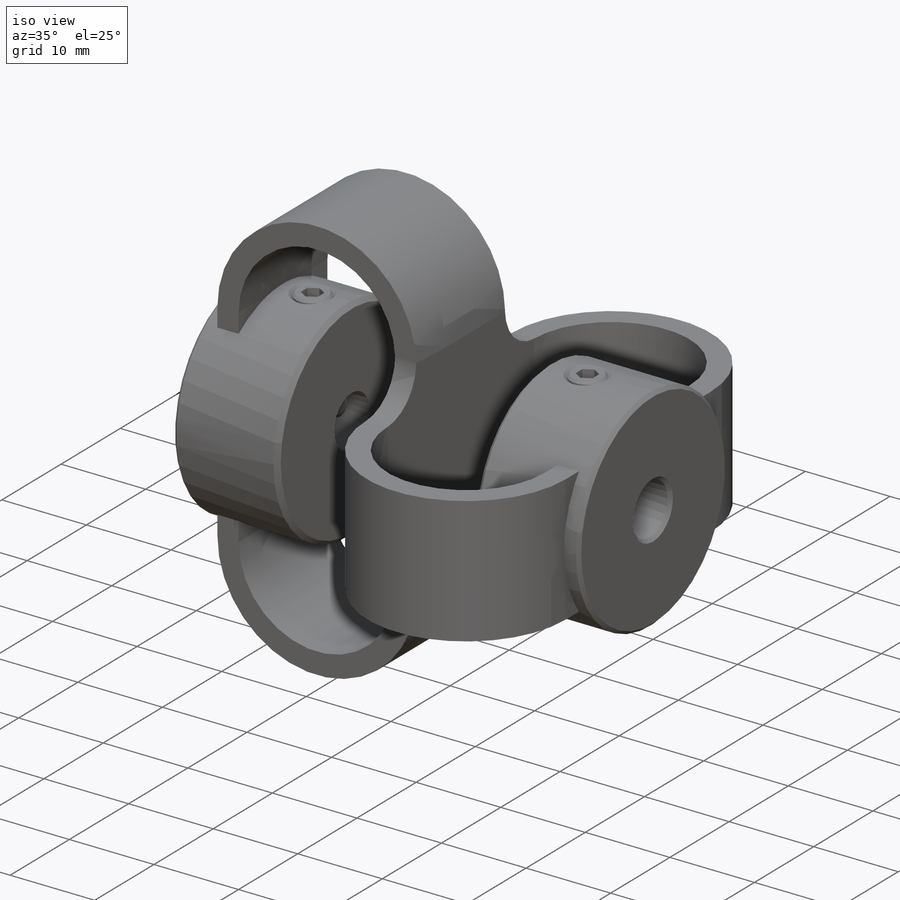
[diagram: iso view]
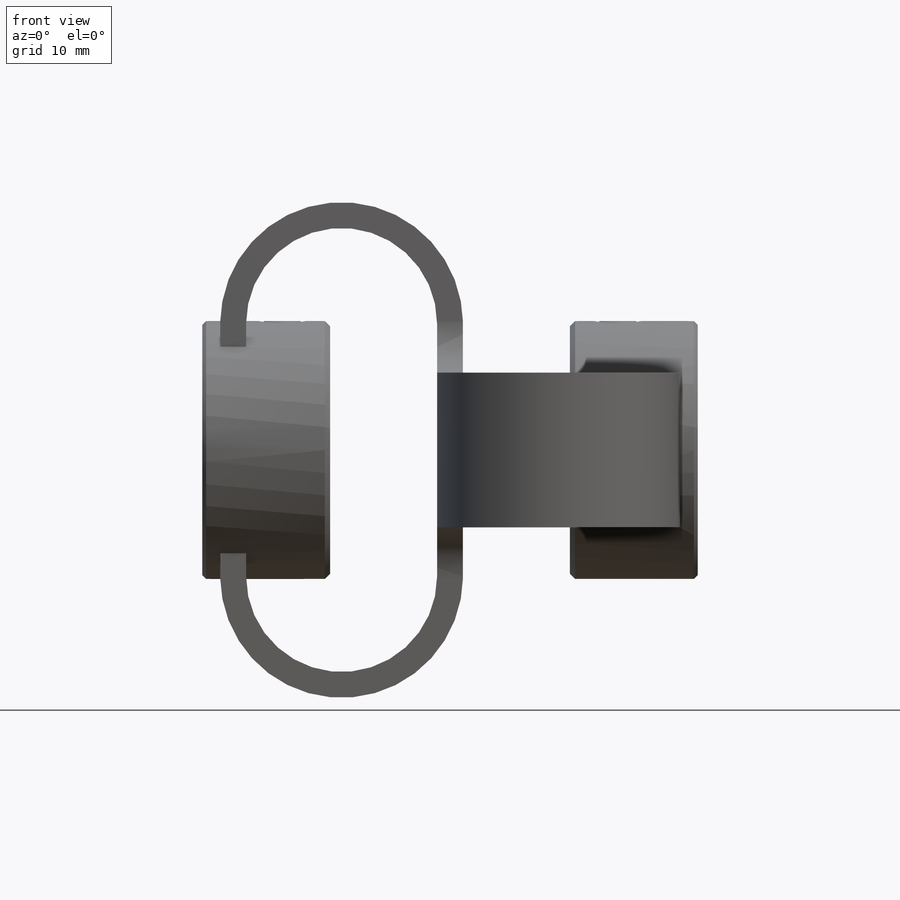
[diagram: front view]
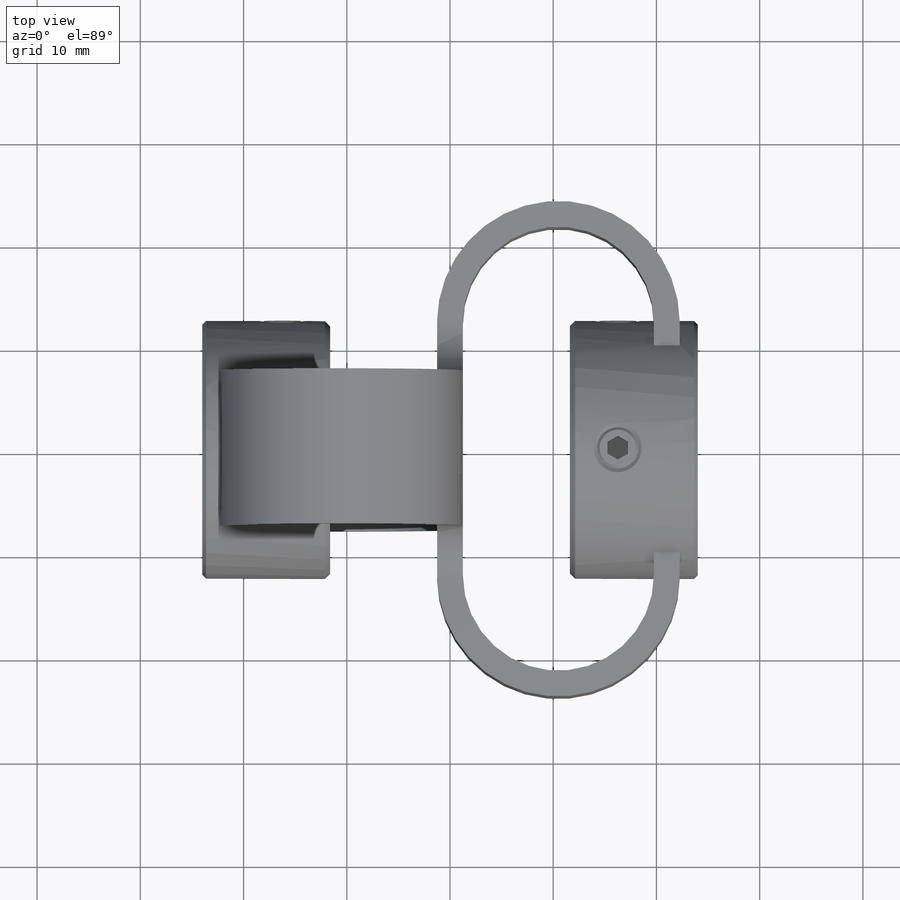
[diagram: top view]
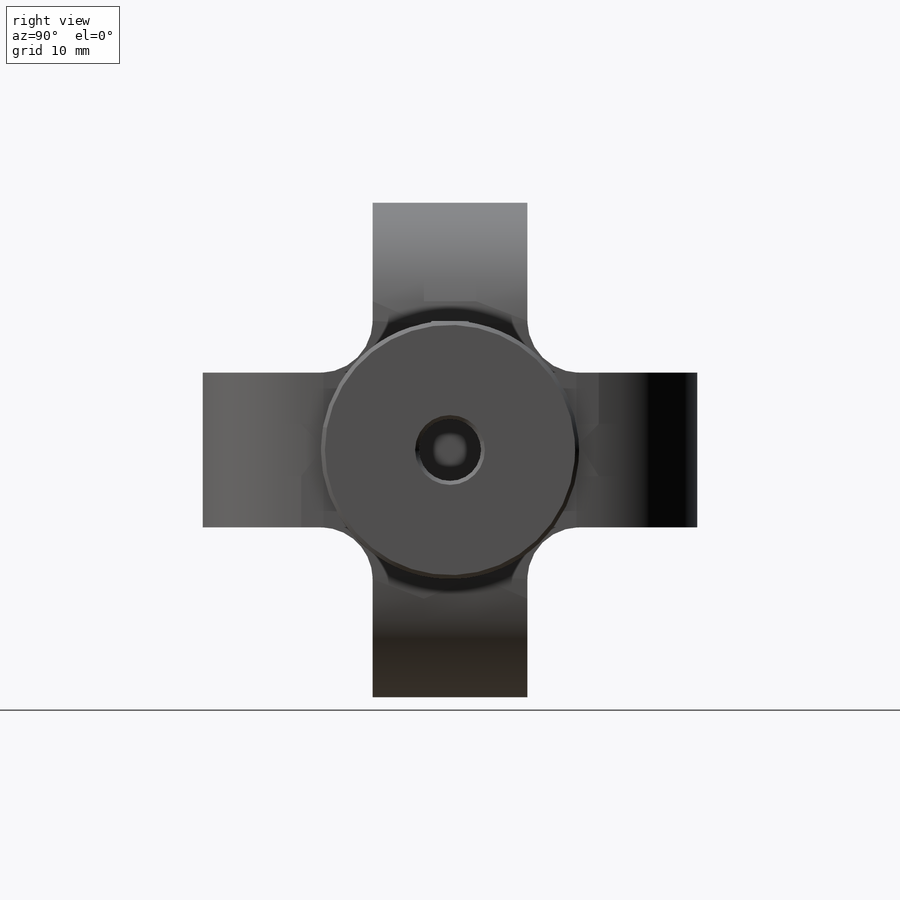
[diagram: right view]
SOLIDWORKS PART (.sldprt)
format: sldprt  version: not decoded by parser v0  size: 572,416 bytes
history: native  units: mm
features: sketch x10, cut_extrude x7, pattern_circular x3, chamfer x3, extrude x2, mirror x2, material x1, revolve x1, delete_body x1, boolean_combine x1, fillet x1 + 1 further entry (+17 scaffold rows collapsed)
feature tree (50):
  scaffold x17  (default folders/planes/origin — collapsed)
  material  "Material <not specified>"
  "Design Table"
  sketch  "Sketch1"  dims[dim D=25.0mm]
  extrude  "Boss-Extrude1"  Depth=48mm dim L=48mm
  sketch  "Sketch2"  dims[dim d2=6.0mm]
  cut_extrude  "Cut-Extrude1"  [1 undecoded]
  sketch  "Sketch8"  dims[Dim M=4.0mm Dim L3=7.75mm]
  cut_extrude  "Cut-Extrude4"  [1 undecoded]
  pattern_circular  "CirPattern2"  Count=2 Angle=90deg
  chamfer  "Chamfer1"  Distance=0.381mm Angle=45deg
  sketch  "Sketch5"
  cut_extrude  "Cut-Extrude2"  Depth=2.54mm
  sketch  "Sketch6"
  revolve  "Revolve1"  Angle=360deg
  chamfer  "Chamfer2"  Distance=0.254mm Angle=45deg
  sketch  "Sketch7"  dims[Dim Hex Key=2.0mm]
  cut_extrude  "Cut-Extrude3"  Depth=2.5mm
  mirror  "Mirror1"
  pattern_circular  "CirPattern1"  Count=2 Angle=90deg
  sketch  "Sketch9"
  cut_extrude  "Cut-Extrude5"  [1 undecoded]
  sketch  "Sketch10"  dims[D1=48.0mm D3=1.75mm D4=24.5mm D2=2.5mm]
  extrude  "Boss-Extrude2"  Depth=15mm
  mirror  "Mirror2"
  pattern_circular  "CirPattern3"  Count=2 Angle=90deg
  delete_body  "Body-Delete1"
  boolean_combine  "Combine1"
  fillet  "Fillet1"  Radius=5mm
  chamfer  "Chamfer3"  Distance=0.5mm Angle=45deg
  sketch  "Sketch11"
  cut_extrude  "Cut-Extrude6"  [1 undecoded]
  sketch  "Sketch12"
  cut_extrude  "Cut-Extrude7"  [1 undecoded]
decode coverage: 17 of 31 modeling features carry decoded parameters; 1 rows unclassified (native names shown)
note: 5 parameter values undecoded
summary: no parameter record found for 5 features
note: suppression state not decoded; provenance and decode notes live in map.json
